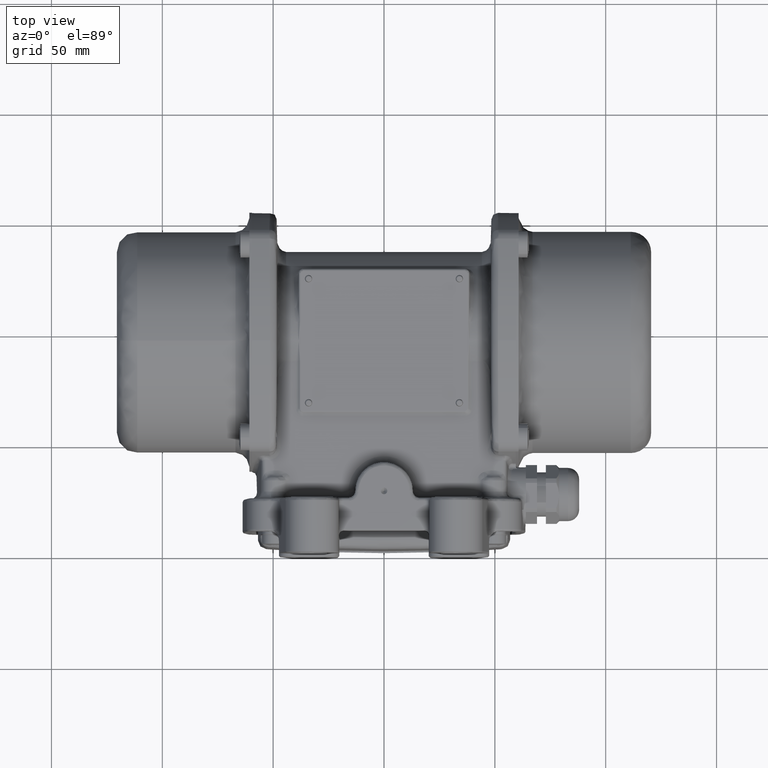
[diagram: clean part render]
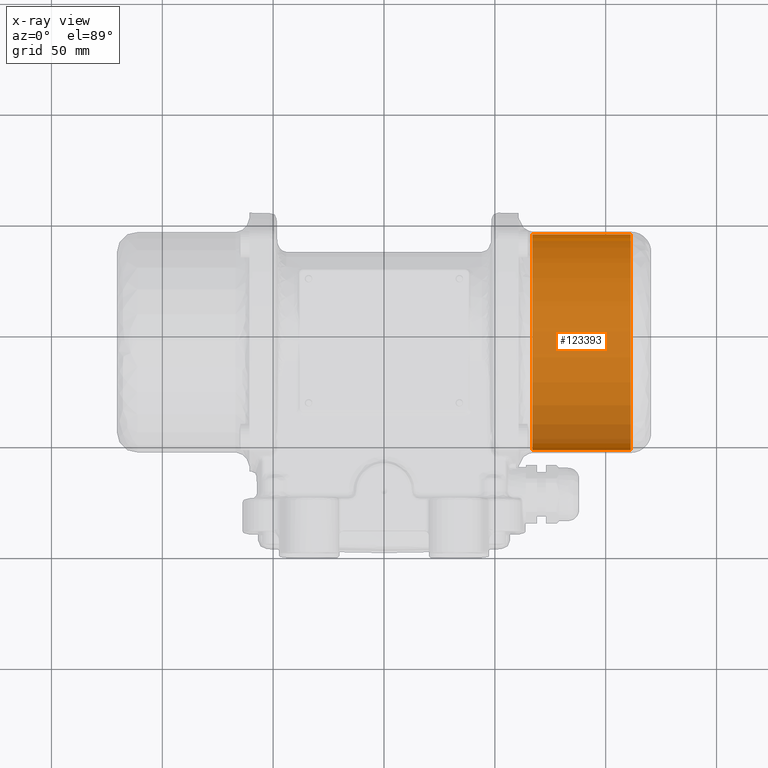
[diagram: x-ray — body ghosted, one internal face saturated and labeled with its STEP entity id]
A machine part, top view, then the same camera in x-ray: the body is ghosted and one INTERNAL B-rep face — a face not visible from any outside direction — is saturated and labeled: STEP entity #123393.
In plain terms, the highlighted cylindrical surface (partial cylindrical patch) has radius 48.7 mm, axis along (1, 0, -0).
Its self-contained STEP definition (entity closure, byte-faithful):
#3046 = AXIS2_PLACEMENT_3D ( 'NONE', #90262, #8240, #149775 ) ;
#4644 = VERTEX_POINT ( 'NONE', #16028 ) ;
#8240 = DIRECTION ( 'NONE',  ( 1.000000000000000000, 8.164311994315690300E-016, -2.547289271816049700E-034 ) ) ;
#15452 = CARTESIAN_POINT ( 'NONE',  ( 111.2999999999999500, 144.6999999999999900, -1.844421971043417300E-013 ) ) ;
#15746 = CARTESIAN_POINT ( 'NONE',  ( 120.5000000000000000, 96.00000000000000000, -1.784629726497544600E-013 ) ) ;
#16028 = CARTESIAN_POINT ( 'NONE',  ( 66.99999999999995700, 144.6999999999999900, -1.844421971043417300E-013 ) ) ;
#18484 = CIRCLE ( 'NONE', #95992, 48.70000000000000300 ) ;
#36352 = ORIENTED_EDGE ( 'NONE', *, *, #37821, .F. ) ;
#37821 = EDGE_CURVE ( 'NONE', #4644, #86319, #49138, .T. ) ;
#43740 = EDGE_LOOP ( 'NONE', ( #36352, #149206, #142667, #128548 ) ) ;
#45459 = VECTOR ( 'NONE', #81985, 1000.000000000000000 ) ;
#49138 = LINE ( 'NONE', #69074, #45459 ) ;
#51564 = EDGE_CURVE ( 'NONE', #86319, #97553, #18484, .T. ) ;
#53044 = EDGE_CURVE ( 'NONE', #151570, #4644, #58884, .T. ) ;
#57598 = DIRECTION ( 'NONE',  ( -1.000000000000000000, -8.164311994315690300E-016, 2.547289271816049700E-034 ) ) ;
#58884 = CIRCLE ( 'NONE', #3046, 48.70000000000000300 ) ;
#69074 = CARTESIAN_POINT ( 'NONE',  ( 120.4999999999999600, 144.6999999999999900, -1.844421971043417300E-013 ) ) ;
#73202 = CYLINDRICAL_SURFACE ( 'NONE', #82961, 48.70000000000000300 ) ;
#76903 = FACE_OUTER_BOUND ( 'NONE', #43740, .T. ) ;
#81985 = DIRECTION ( 'NONE',  ( 1.000000000000000000, 8.164311994315690300E-016, -2.547289271816049200E-034 ) ) ;
#82930 = CARTESIAN_POINT ( 'NONE',  ( 67.00000000000004300, 47.30000000000000400, -1.784477781070148500E-013 ) ) ;
#82961 = AXIS2_PLACEMENT_3D ( 'NONE', #15746, #123738, #97896 ) ;
#85198 = VECTOR ( 'NONE', #132067, 1000.000000000000000 ) ;
#85465 = CARTESIAN_POINT ( 'NONE',  ( 120.5000000000000400, 47.30000000000000400, -1.784477781070148500E-013 ) ) ;
#86319 = VERTEX_POINT ( 'NONE', #15452 ) ;
#90262 = CARTESIAN_POINT ( 'NONE',  ( 67.00000000000000000, 96.00000000000000000, -1.784629726497544600E-013 ) ) ;
#95992 = AXIS2_PLACEMENT_3D ( 'NONE', #107147, #57598, #129467 ) ;
#97553 = VERTEX_POINT ( 'NONE', #105989 ) ;
#97896 = DIRECTION ( 'NONE',  ( 8.548945261487344700E-016, -1.000000000000000000, 3.120029309986970000E-019 ) ) ;
#105989 = CARTESIAN_POINT ( 'NONE',  ( 111.3000000000000400, 47.30000000000000400, -1.784477781070148500E-013 ) ) ;
#107147 = CARTESIAN_POINT ( 'NONE',  ( 111.3000000000000000, 96.00000000000000000, -1.784629726497544600E-013 ) ) ;
#118510 = LINE ( 'NONE', #85465, #85198 ) ;
#123393 = ADVANCED_FACE ( 'NONE', ( #76903 ), #73202, .F. ) ;
#123738 = DIRECTION ( 'NONE',  ( 1.000000000000000000, 8.164311994315690300E-016, -2.547289271816049700E-034 ) ) ;
#128548 = ORIENTED_EDGE ( 'NONE', *, *, #51564, .F. ) ;
#129467 = DIRECTION ( 'NONE',  ( 8.548945261487344700E-016, -1.000000000000000000, 3.120029309986970000E-019 ) ) ;
#132067 = DIRECTION ( 'NONE',  ( 1.000000000000000000, 8.164311994315690300E-016, -2.547289271816049200E-034 ) ) ;
#142667 = ORIENTED_EDGE ( 'NONE', *, *, #146564, .T. ) ;
#146564 = EDGE_CURVE ( 'NONE', #151570, #97553, #118510, .T. ) ;
#149206 = ORIENTED_EDGE ( 'NONE', *, *, #53044, .F. ) ;
#149775 = DIRECTION ( 'NONE',  ( 8.548945261487344700E-016, -1.000000000000000000, 3.120029309986970000E-019 ) ) ;
#151570 = VERTEX_POINT ( 'NONE', #82930 ) ;